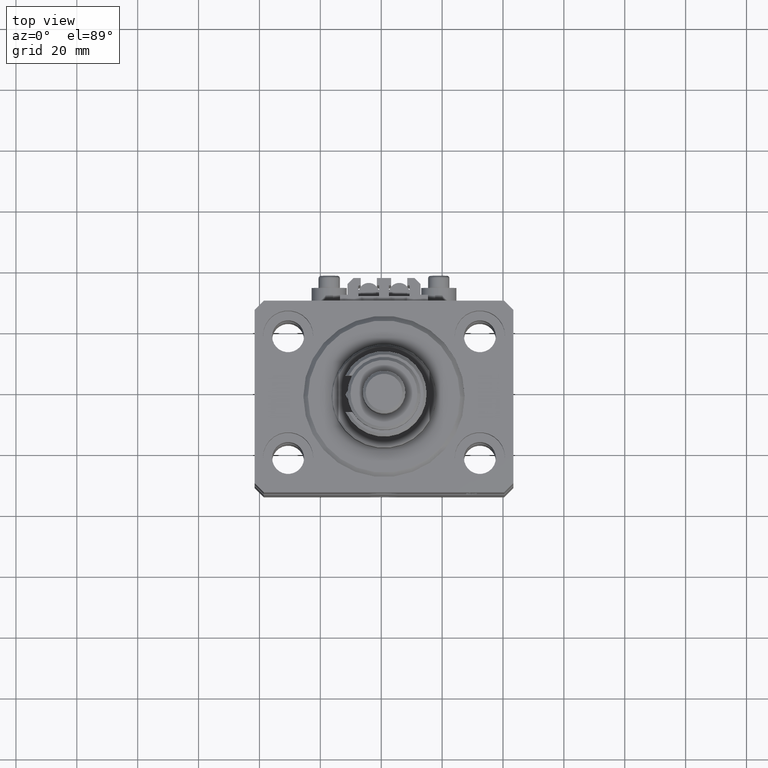
[diagram: clean part render]
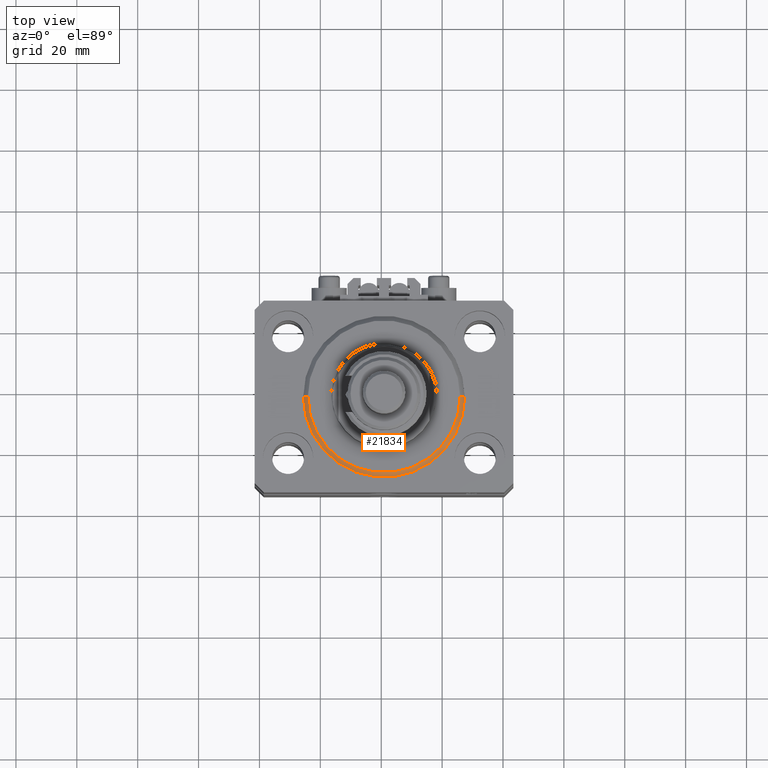
[diagram: same view with one face highlighted and labeled with its STEP entity id]
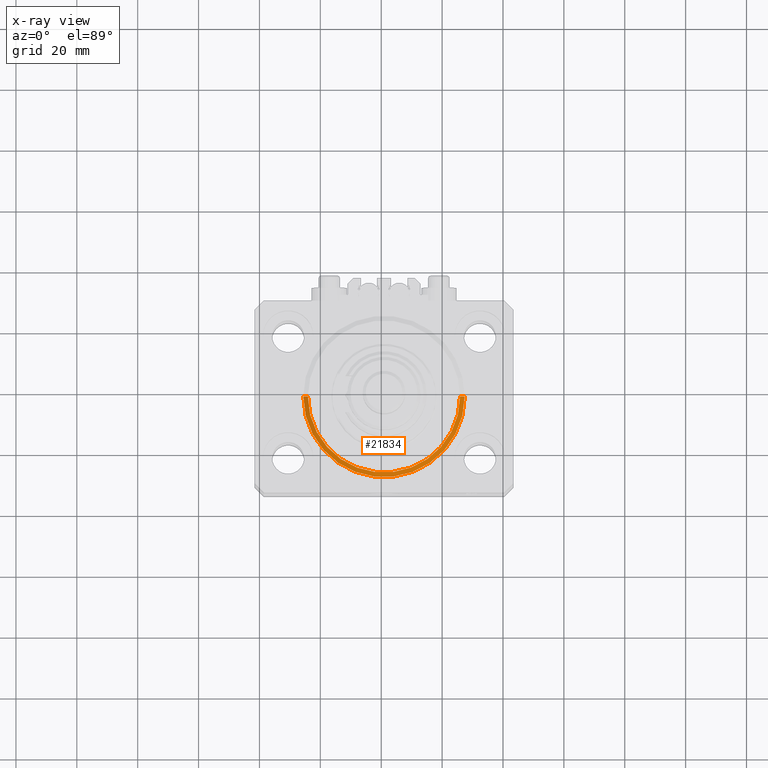
[diagram: x-ray of the same camera — body ghosted, the highlighted face saturated]
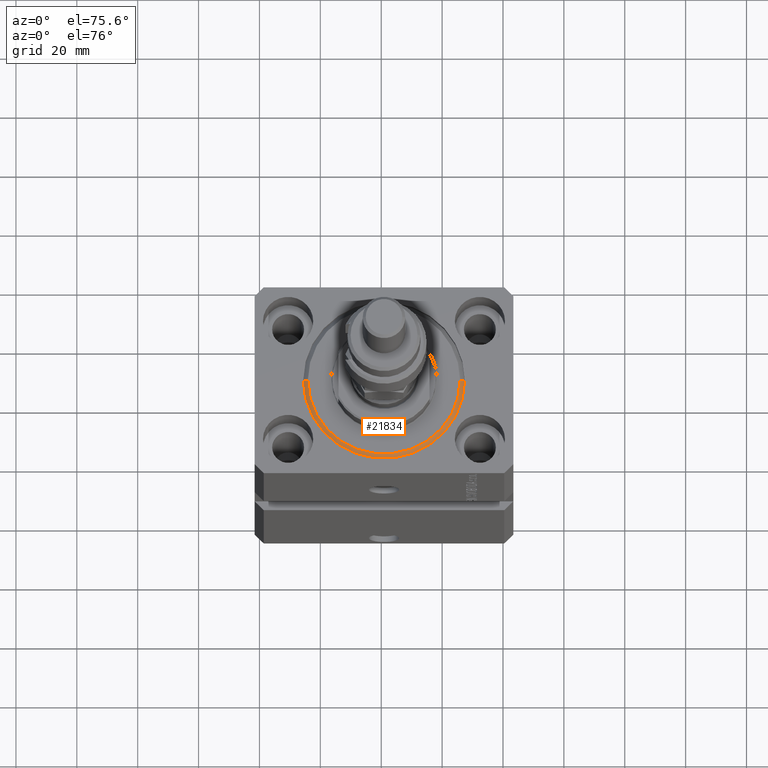
[diagram: same view with one face highlighted and labeled with its STEP entity id]
A machine part, top view. The second image highlights one B-rep face of the part: STEP entity #21834.
The next image is the same camera in x-ray: the body ghosted, the highlighted face saturated — about 0% of this face is hidden behind the body in this view.
A second angle (auxiliary view) of the same face is appended — the face is thin or edge-on in the first view.
In plain terms, the highlighted conical surface has half-angle 45 deg.
Its self-contained STEP definition (entity closure, byte-faithful):
#396 = VERTEX_POINT ( 'NONE', #45382 ) ;
#580 = CARTESIAN_POINT ( 'NONE',  ( -24.99999999999995026, 3.153465507804431248E-15, 0.000000000000000000 ) ) ;
#1740 = CARTESIAN_POINT ( 'NONE',  ( 0.000000000000000000, 0.000000000000000000, 1.500000000000046407 ) ) ;
#2213 = DIRECTION ( 'NONE',  ( -0.000000000000000000, -0.000000000000000000, -1.000000000000000000 ) ) ;
#2247 = DIRECTION ( 'NONE',  ( -0.000000000000000000, -0.000000000000000000, 1.000000000000000000 ) ) ;
#5807 = CIRCLE ( 'NONE', #32541, 24.99999999999995026 ) ;
#6242 = EDGE_CURVE ( 'NONE', #396, #46000, #13381, .T. ) ;
#7856 = CARTESIAN_POINT ( 'NONE',  ( 0.000000000000000000, 0.000000000000000000, 1.500000000000046407 ) ) ;
#11745 = ORIENTED_EDGE ( 'NONE', *, *, #6242, .T. ) ;
#13381 = LINE ( 'NONE', #17568, #39753 ) ;
#14733 = ORIENTED_EDGE ( 'NONE', *, *, #27982, .F. ) ;
#14770 = DIRECTION ( 'NONE',  ( 1.000000000000000000, 0.000000000000000000, 0.000000000000000000 ) ) ;
#17568 = CARTESIAN_POINT ( 'NONE',  ( 26.50000000000000355, 0.000000000000000000, 1.500000000000046407 ) ) ;
#17661 = ORIENTED_EDGE ( 'NONE', *, *, #32274, .F. ) ;
#18835 = LINE ( 'NONE', #45543, #31913 ) ;
#21834 = ADVANCED_FACE ( 'NONE', ( #38611 ), #44998, .T. ) ;
#24386 = CARTESIAN_POINT ( 'NONE',  ( 26.50000000000000355, 3.245314017740485765E-15, 1.500000000000046407 ) ) ;
#25542 = AXIS2_PLACEMENT_3D ( 'NONE', #7856, #32153, #35572 ) ;
#26938 = EDGE_LOOP ( 'NONE', ( #17661, #14733, #11745, #32348 ) ) ;
#27982 = EDGE_CURVE ( 'NONE', #396, #48120, #5807, .T. ) ;
#29808 = DIRECTION ( 'NONE',  ( -0.7071067811865491270, 8.659560562354952580E-17, 0.7071067811865459074 ) ) ;
#30107 = DIRECTION ( 'NONE',  ( 0.7071067811865491270, 0.000000000000000000, 0.7071067811865459074 ) ) ;
#31913 = VECTOR ( 'NONE', #29808, 1000.000000000000000 ) ;
#32153 = DIRECTION ( 'NONE',  ( -0.000000000000000000, -0.000000000000000000, 1.000000000000000000 ) ) ;
#32274 = EDGE_CURVE ( 'NONE', #48120, #49288, #18835, .T. ) ;
#32348 = ORIENTED_EDGE ( 'NONE', *, *, #43814, .F. ) ;
#32541 = AXIS2_PLACEMENT_3D ( 'NONE', #34389, #2213, #14770 ) ;
#33631 = DIRECTION ( 'NONE',  ( 1.000000000000000000, 0.000000000000000000, 0.000000000000000000 ) ) ;
#34389 = CARTESIAN_POINT ( 'NONE',  ( 0.000000000000000000, 0.000000000000000000, 0.000000000000000000 ) ) ;
#35572 = DIRECTION ( 'NONE',  ( 1.000000000000000000, 0.000000000000000000, 0.000000000000000000 ) ) ;
#37655 = CARTESIAN_POINT ( 'NONE',  ( -26.50000000000000355, 0.000000000000000000, 1.500000000000046407 ) ) ;
#38611 = FACE_OUTER_BOUND ( 'NONE', #26938, .T. ) ;
#39753 = VECTOR ( 'NONE', #30107, 1000.000000000000000 ) ;
#43814 = EDGE_CURVE ( 'NONE', #49288, #46000, #48131, .T. ) ;
#44998 = CONICAL_SURFACE ( 'NONE', #45830, 26.50000000000000355, 0.7853981633974506105 ) ;
#45382 = CARTESIAN_POINT ( 'NONE',  ( 24.99999999999995026, 0.000000000000000000, 0.000000000000000000 ) ) ;
#45543 = CARTESIAN_POINT ( 'NONE',  ( -26.50000000000000355, 3.245314017740486554E-15, 1.500000000000046407 ) ) ;
#45830 = AXIS2_PLACEMENT_3D ( 'NONE', #1740, #2247, #33631 ) ;
#46000 = VERTEX_POINT ( 'NONE', #24386 ) ;
#48120 = VERTEX_POINT ( 'NONE', #580 ) ;
#48131 = CIRCLE ( 'NONE', #25542, 26.50000000000000355 ) ;
#49288 = VERTEX_POINT ( 'NONE', #37655 ) ;